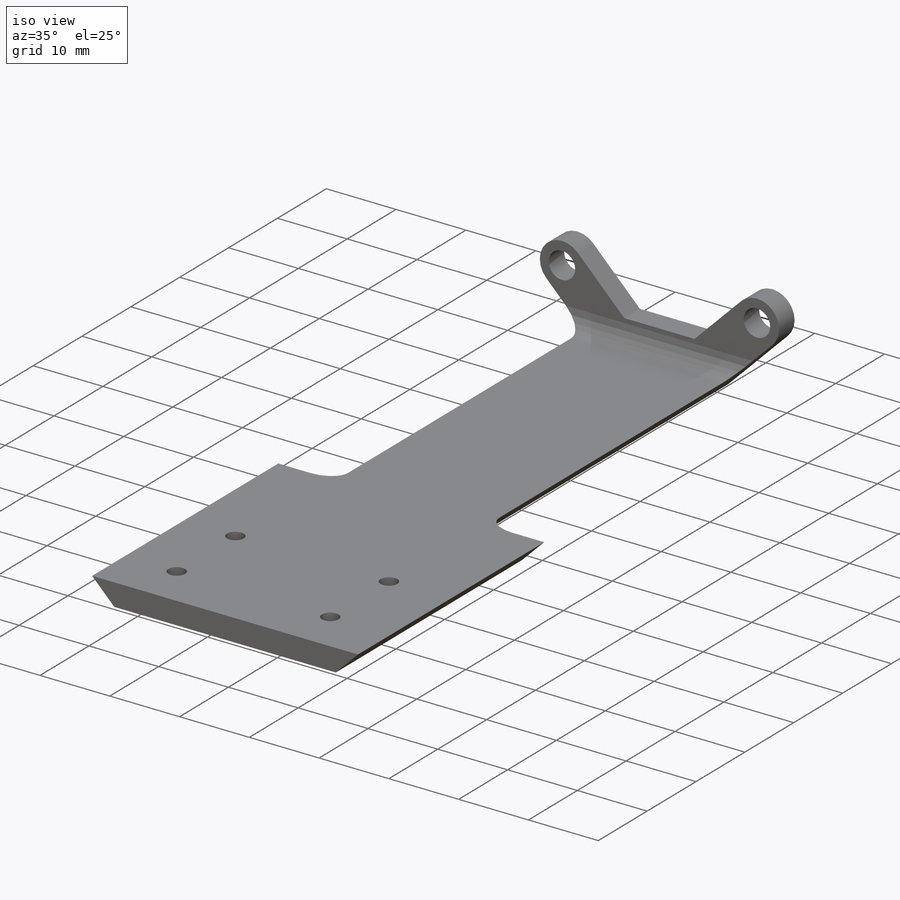
[diagram: iso view]
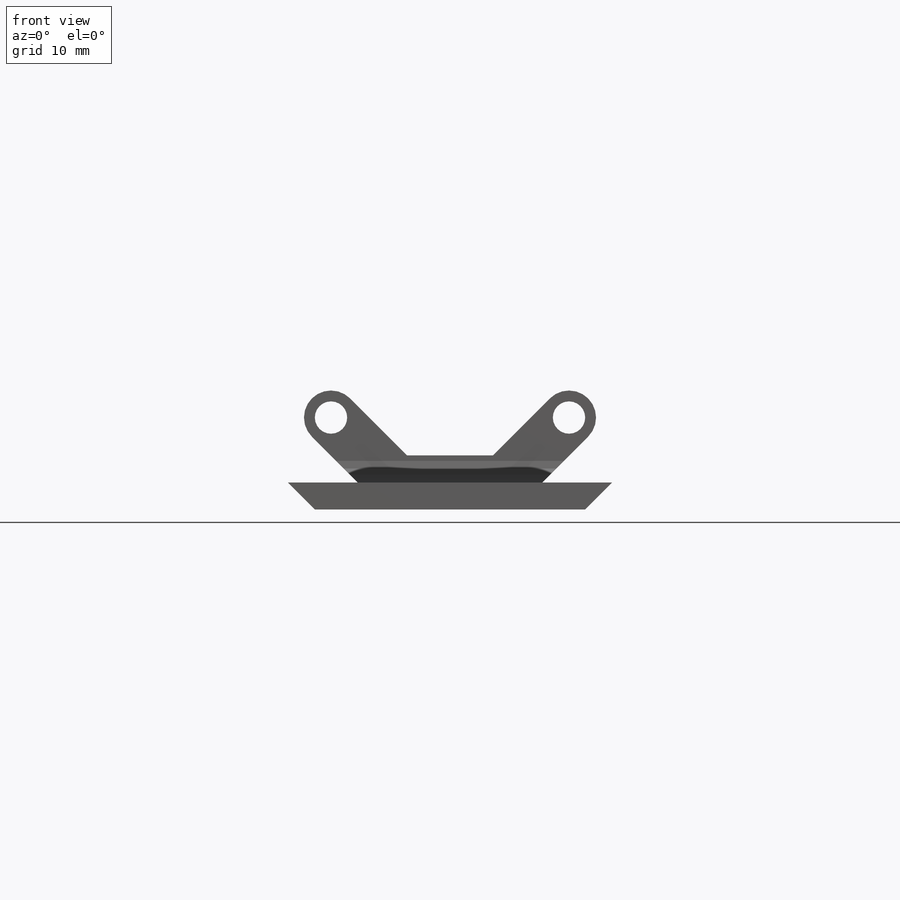
[diagram: front view]
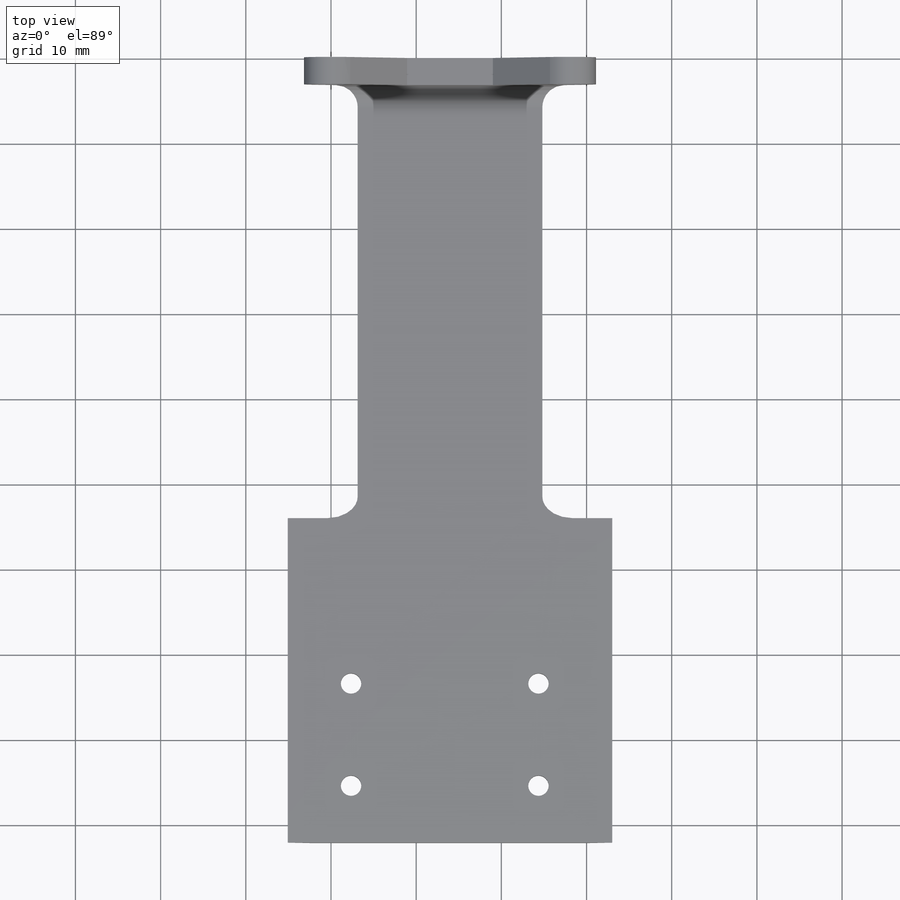
[diagram: top view]
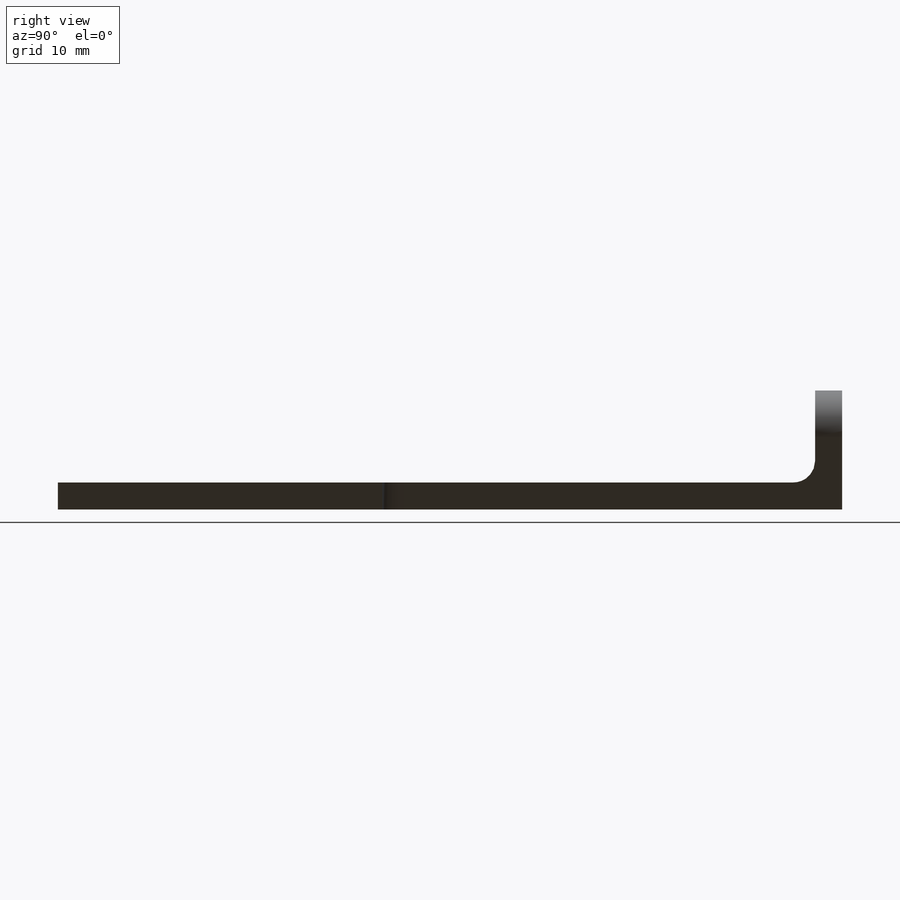
[diagram: right view]
SOLIDWORKS PART (.sldprt)
format: sldprt  version: not decoded by parser v0  size: 282,624 bytes
history: native  units: mm
features: sketch x7, extrude x3, fillet x2, hole x2, material x1 (+11 scaffold rows collapsed)
feature tree (26):
  scaffold x11  (default folders/planes/origin — collapsed)
  material  "Material <not specified>"
  sketch  "Sketch1"  dims[D1=7.62mm D2=7.62mm D3=12.7mm D4=7.62mm D5=3.175mm D6=3.175mm]
  extrude  "Boss-Extrude1"  Depth=3.175mm
  sketch  "Sketch2"  dims[D1=3.175mm]
  extrude  "Boss-Extrude2"  Depth=50.8mm
  fillet  "Fillet1"  Radius=2.54mm
  hole  "#6 Clearance Hole1"  Diameter=3.7973mm Depth=25.4mm
  sketch  "Sketch4"
  sketch  "Sketch3"  dims[hole-wizard template sketch: 50 standard entries collapsed; hole parameters above]
  sketch  "Sketch7"  dims[c1.D1=135.0deg c2.D1=38.1mm c2.D2=~0.819704mm c3.D2=135.0deg c4.D2=~8.209877mm c4.D3=~8.209867mm]
  extrude  "Boss-Extrude3"  Depth=38.1mm
  fillet  "Fillet2"  Radius=2.54mm
  hole  "M2 Clearance Hole1"  Diameter=2.4mm Depth=25.4mm
  sketch  "Sketch9"  dims[D1=22.0mm D2=12.0mm D3=25.4mm]
  sketch  "Sketch8"  dims[hole-wizard template sketch: 47 standard entries collapsed; hole parameters kept: c15.Hole Depth=25.4mm c15.D3=~14.816244mm c15.Drill Angle=118.0deg]
decode coverage: 13 of 14 modeling features carry decoded parameters
note: ~ marks probable driven/reference dimensions
note: suppression state not decoded; provenance and decode notes live in map.json
